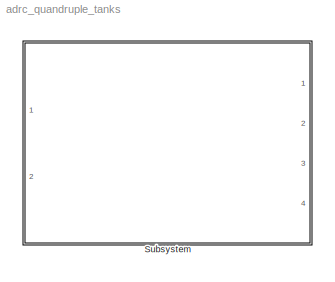
MODEL adrc_quandruple_tanks
KIND model
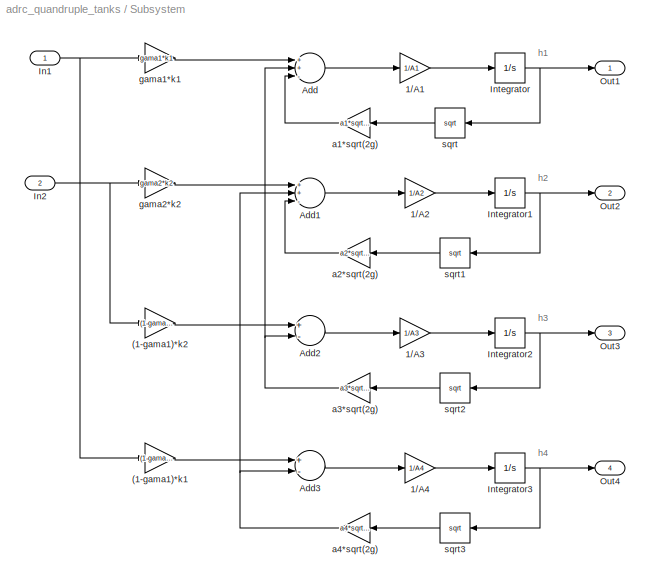
BLOCK [SubSystem] Subsystem
  MinAlgLoopOccurrences = off
  Ports = [2, 4]
  RTWSystemCode = Auto
  TreatAsAtomicUnit = off
BLOCK [Gain] Subsystem/(1-gama1)*k1
  Gain = (1-gama1)*k1
  OutDataTypeMode = Inherit via internal rule
  ParameterDataTypeMode = Inherit via internal rule
  SaturateOnIntegerOverflow = off
BLOCK [Gain] Subsystem/(1-gama1)*k2
  Gain = (1-gama2)*k2
  OutDataTypeMode = Inherit via internal rule
  ParameterDataTypeMode = Inherit via internal rule
  SaturateOnIntegerOverflow = off
BLOCK [Gain] Subsystem/1//A1
  Gain = 1/A1
  OutDataTypeMode = Inherit via internal rule
  ParameterDataTypeMode = Inherit via internal rule
  SaturateOnIntegerOverflow = off
BLOCK [Gain] Subsystem/1//A2
  Gain = 1/A2
  OutDataTypeMode = Inherit via internal rule
  ParameterDataTypeMode = Inherit via internal rule
  SaturateOnIntegerOverflow = off
BLOCK [Gain] Subsystem/1//A3
  Gain = 1/A3
  OutDataTypeMode = Inherit via internal rule
  ParameterDataTypeMode = Inherit via internal rule
  SaturateOnIntegerOverflow = off
BLOCK [Gain] Subsystem/1//A4
  Gain = 1/A4
  OutDataTypeMode = Inherit via internal rule
  ParameterDataTypeMode = Inherit via internal rule
  SaturateOnIntegerOverflow = off
BLOCK [Sum] Subsystem/Add
  InputSameDT = off
  Inputs = ++-
  OutDataTypeMode = Inherit via internal rule
  OutScaling = 2^-10
  Ports = [3, 1]
  SaturateOnIntegerOverflow = off
BLOCK [Sum] Subsystem/Add1
  InputSameDT = off
  Inputs = ++-
  OutDataTypeMode = Inherit via internal rule
  OutScaling = 2^-10
  Ports = [3, 1]
  SaturateOnIntegerOverflow = off
BLOCK [Sum] Subsystem/Add2
  InputSameDT = off
  Inputs = +-
  OutDataTypeMode = Inherit via internal rule
  OutScaling = 2^-10
  Ports = [2, 1]
  SaturateOnIntegerOverflow = off
BLOCK [Sum] Subsystem/Add3
  InputSameDT = off
  Inputs = +-
  OutDataTypeMode = Inherit via internal rule
  OutScaling = 2^-10
  Ports = [2, 1]
  SaturateOnIntegerOverflow = off
BLOCK [Inport] Subsystem/In1
  IconDisplay = Port number
  LatchInput = off
  OutDataType = fixdt(1,16,0)
  OutScaling = []
  Port = 1
BLOCK [Inport] Subsystem/In2
  IconDisplay = Port number
  LatchInput = off
  OutDataType = fixdt(1,16,0)
  OutScaling = []
  Port = 2
BLOCK [Integrator] Subsystem/Integrator
  InitialCondition = h10
  Ports = [1, 1]
BLOCK [Integrator] Subsystem/Integrator1
  InitialCondition = h20
  Ports = [1, 1]
BLOCK [Integrator] Subsystem/Integrator2
  InitialCondition = h30
  Ports = [1, 1]
BLOCK [Integrator] Subsystem/Integrator3
  InitialCondition = h40
  Ports = [1, 1]
BLOCK [Outport] Subsystem/Out1
  BusOutputAsStruct = off
  IconDisplay = Port number
  OutDataType = fixdt(1,16,0)
  OutScaling = []
BLOCK [Outport] Subsystem/Out2
  BusOutputAsStruct = off
  IconDisplay = Port number
  OutDataType = fixdt(1,16,0)
  OutScaling = []
  Port = 2
BLOCK [Outport] Subsystem/Out3
  BusOutputAsStruct = off
  IconDisplay = Port number
  OutDataType = fixdt(1,16,0)
  OutScaling = []
  Port = 3
BLOCK [Outport] Subsystem/Out4
  BusOutputAsStruct = off
  IconDisplay = Port number
  OutDataType = fixdt(1,16,0)
  OutScaling = []
  Port = 4
BLOCK [Gain] Subsystem/a1*sqrt(2g)
  Gain = a1*sqrt(2*g)
  OutDataTypeMode = Inherit via internal rule
  ParameterDataTypeMode = Inherit via internal rule
  SaturateOnIntegerOverflow = off
BLOCK [Gain] Subsystem/a2*sqrt(2g)
  Gain = a2*sqrt(2*g)
  OutDataTypeMode = Inherit via internal rule
  ParameterDataTypeMode = Inherit via internal rule
  SaturateOnIntegerOverflow = off
BLOCK [Gain] Subsystem/a3*sqrt(2g)
  Gain = a3*sqrt(2*g)
  OutDataTypeMode = Inherit via internal rule
  ParameterDataTypeMode = Inherit via internal rule
  SaturateOnIntegerOverflow = off
BLOCK [Gain] Subsystem/a4*sqrt(2g)
  Gain = a4*sqrt(2*g)
  OutDataTypeMode = Inherit via internal rule
  ParameterDataTypeMode = Inherit via internal rule
  SaturateOnIntegerOverflow = off
BLOCK [Gain] Subsystem/gama1*k1
  Gain = gama1*k1
  OutDataTypeMode = Inherit via internal rule
  ParameterDataTypeMode = Inherit via internal rule
  SaturateOnIntegerOverflow = off
BLOCK [Gain] Subsystem/gama2*k2
  Gain = gama2*k2
  OutDataTypeMode = Inherit via internal rule
  ParameterDataTypeMode = Inherit via internal rule
  SaturateOnIntegerOverflow = off
BLOCK [Math] Subsystem/sqrt
  Operator = sqrt
  Ports = [1, 1]
BLOCK [Math] Subsystem/sqrt1
  Operator = sqrt
  Ports = [1, 1]
BLOCK [Math] Subsystem/sqrt2
  Operator = sqrt
  Ports = [1, 1]
BLOCK [Math] Subsystem/sqrt3
  Operator = sqrt
  Ports = [1, 1]
ANNOTATION Subsystem: h1
ANNOTATION Subsystem: h2
ANNOTATION Subsystem: h3
ANNOTATION Subsystem: h4
LINE Subsystem/(1-gama1)*k1:1 -> Subsystem/Add3:1
LINE Subsystem/(1-gama1)*k2:1 -> Subsystem/Add2:1
LINE Subsystem/1//A1:1 -> Subsystem/Integrator:1
LINE Subsystem/1//A2:1 -> Subsystem/Integrator1:1
LINE Subsystem/1//A3:1 -> Subsystem/Integrator2:1
LINE Subsystem/1//A4:1 -> Subsystem/Integrator3:1
LINE Subsystem/Add1:1 -> Subsystem/1//A2:1
LINE Subsystem/Add2:1 -> Subsystem/1//A3:1
LINE Subsystem/Add3:1 -> Subsystem/1//A4:1
LINE Subsystem/Add:1 -> Subsystem/1//A1:1
NET Subsystem/In1:1 -> Subsystem/(1-gama1)*k1:1, Subsystem/gama1*k1:1
NET Subsystem/In2:1 -> Subsystem/(1-gama1)*k2:1, Subsystem/gama2*k2:1
NET Subsystem/Integrator1:1 -> Subsystem/Out2:1, Subsystem/sqrt1:1
NET Subsystem/Integrator2:1 -> Subsystem/Out3:1, Subsystem/sqrt2:1
NET Subsystem/Integrator3:1 -> Subsystem/Out4:1, Subsystem/sqrt3:1
NET Subsystem/Integrator:1 -> Subsystem/Out1:1, Subsystem/sqrt:1
LINE Subsystem/a1*sqrt(2g):1 -> Subsystem/Add:3
LINE Subsystem/a2*sqrt(2g):1 -> Subsystem/Add1:3
NET Subsystem/a3*sqrt(2g):1 -> Subsystem/Add2:2, Subsystem/Add:2
NET Subsystem/a4*sqrt(2g):1 -> Subsystem/Add1:2, Subsystem/Add3:2
LINE Subsystem/gama1*k1:1 -> Subsystem/Add:1
LINE Subsystem/gama2*k2:1 -> Subsystem/Add1:1
LINE Subsystem/sqrt1:1 -> Subsystem/a2*sqrt(2g):1
LINE Subsystem/sqrt2:1 -> Subsystem/a3*sqrt(2g):1
LINE Subsystem/sqrt3:1 -> Subsystem/a4*sqrt(2g):1
LINE Subsystem/sqrt:1 -> Subsystem/a1*sqrt(2g):1
note: NET lines group one-source signal fan-out (src -> all destinations, sorted); 1:1 wires keep LINE
